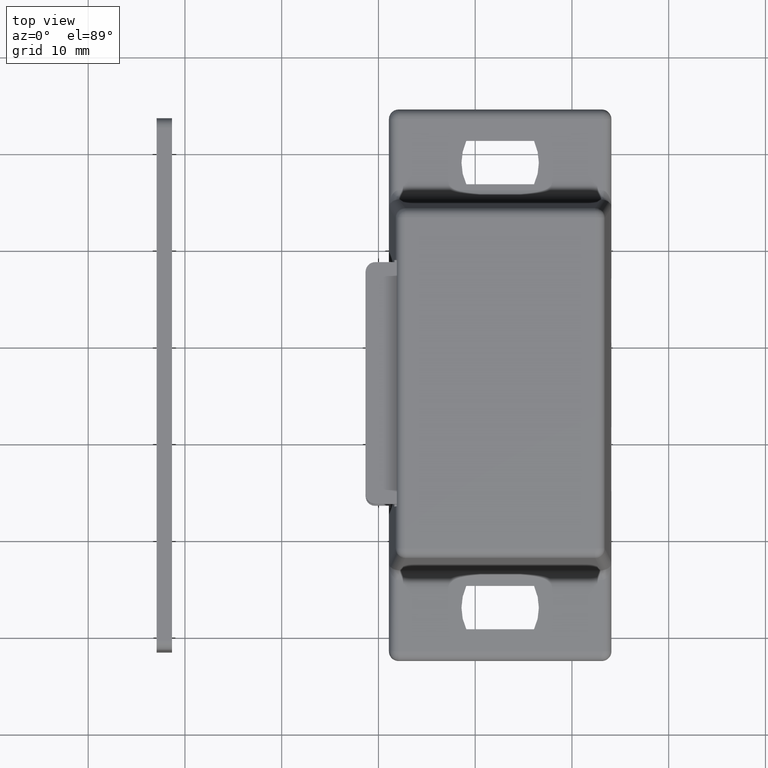
[diagram: clean part render]
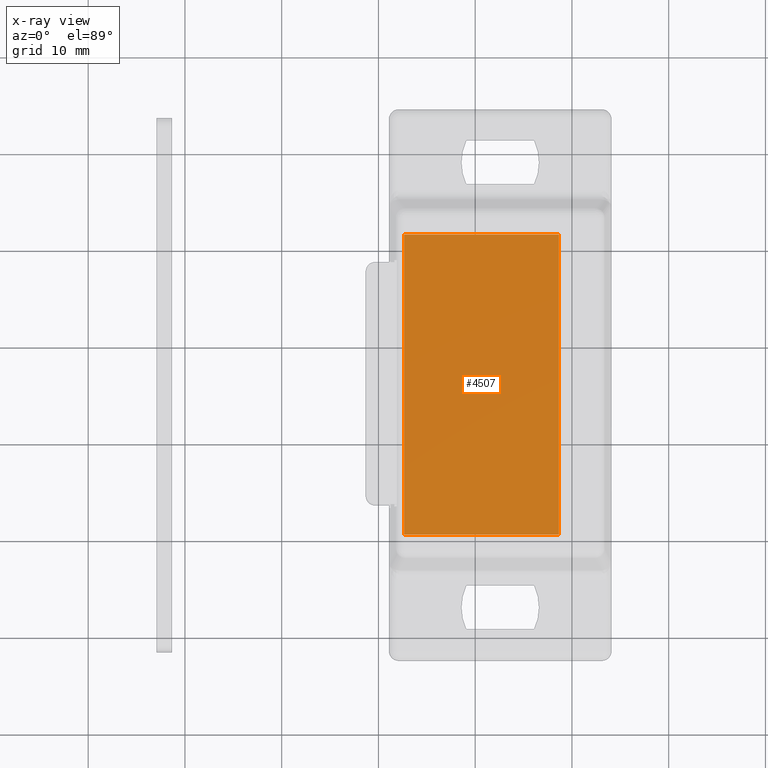
[diagram: x-ray — body ghosted, one internal face saturated and labeled with its STEP entity id]
A machine part, top view, then the same camera in x-ray: the body is ghosted and one INTERNAL B-rep face — a face not visible from any outside direction — is saturated and labeled: STEP entity #4507.
In plain terms, the highlighted planar face has unit normal (-0, -0, 1).
Its self-contained STEP definition (entity closure, byte-faithful):
#566=FACE_OUTER_BOUND('',#824,.T.);
#824=EDGE_LOOP('',(#3988,#3989,#3990,#3991));
#1252=LINE('',#8144,#1712);
#1256=LINE('',#8152,#1716);
#1259=LINE('',#8158,#1719);
#1262=LINE('',#8163,#1722);
#1712=VECTOR('',#6033,31.);
#1716=VECTOR('',#6039,16.);
#1719=VECTOR('',#6044,16.);
#1722=VECTOR('',#6049,31.);
#2140=VERTEX_POINT('',#8142);
#2141=VERTEX_POINT('',#8143);
#2144=VERTEX_POINT('',#8151);
#2146=VERTEX_POINT('',#8157);
#2762=EDGE_CURVE('',#2140,#2141,#1252,.T.);
#2766=EDGE_CURVE('',#2144,#2140,#1256,.T.);
#2769=EDGE_CURVE('',#2141,#2146,#1259,.T.);
#2772=EDGE_CURVE('',#2146,#2144,#1262,.T.);
#3988=ORIENTED_EDGE('',*,*,#2772,.T.);
#3989=ORIENTED_EDGE('',*,*,#2766,.T.);
#3990=ORIENTED_EDGE('',*,*,#2762,.T.);
#3991=ORIENTED_EDGE('',*,*,#2769,.T.);
#4266=PLANE('',#4901);
#4507=ADVANCED_FACE('',(#566),#4266,.F.);
#4901=AXIS2_PLACEMENT_3D('',#8165,#6051,#6052);
#6033=DIRECTION('',(-5.32289090870246E-16,-1.,-6.96610525255E-16));
#6039=DIRECTION('',(1.,-1.74152631313744E-16,-1.22927791483037E-31));
#6044=DIRECTION('',(-1.,4.17013917950497E-16,2.92107519931171E-31));
#6049=DIRECTION('',(6.03916382781546E-16,1.,6.96610525255E-16));
#6051=DIRECTION('center_axis',(1.61123550902979E-33,-6.96610525255E-16,
1.));
#6052=DIRECTION('ref_axis',(1.,0.,0.));
#8142=CARTESIAN_POINT('',(6.07089919145473,15.5000000000005,4.75000000000002));
#8143=CARTESIAN_POINT('',(6.07089919145472,-15.4999999999995,4.74999999999999));
#8144=CARTESIAN_POINT('',(6.07089919145473,7.75000000000046,4.75000000000001));
#8151=CARTESIAN_POINT('',(-9.92910080854527,15.5000000000005,4.75000000000002));
#8152=CARTESIAN_POINT('',(-11.0219165488838,15.5000000000005,4.75000000000002));
#8157=CARTESIAN_POINT('',(-9.92910080854528,-15.4999999999995,4.74999999999999));
#8158=CARTESIAN_POINT('',(-3.02191654888386,-15.4999999999995,4.74999999999999));
#8163=CARTESIAN_POINT('',(-9.92910080854528,-7.74999999999953,4.75));
#8165=CARTESIAN_POINT('Origin',(-12.1147322892224,4.67214369810392E-13,
4.75000000000001));